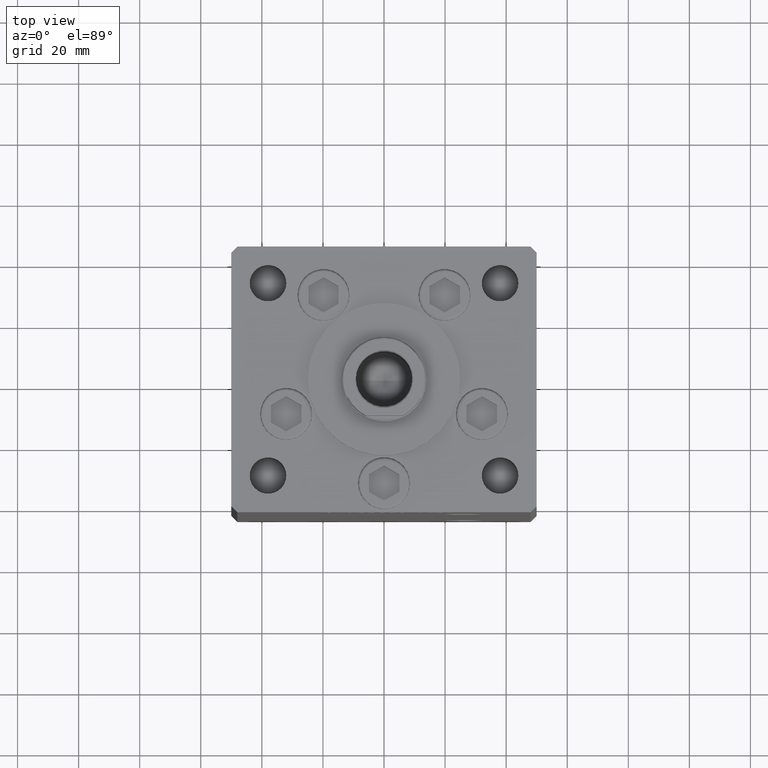
[diagram: clean part render]
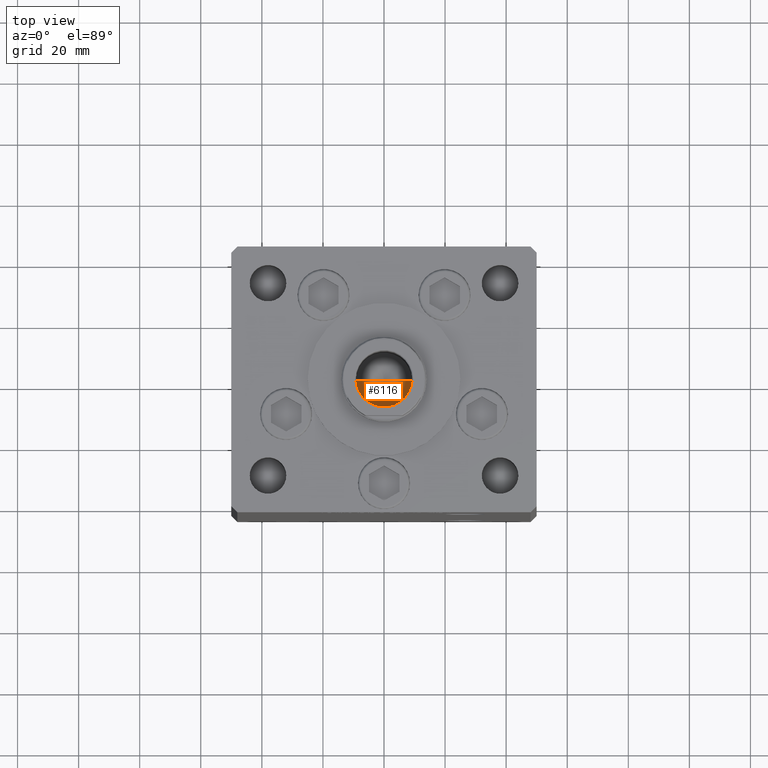
[diagram: same view with one face highlighted and labeled with its STEP entity id]
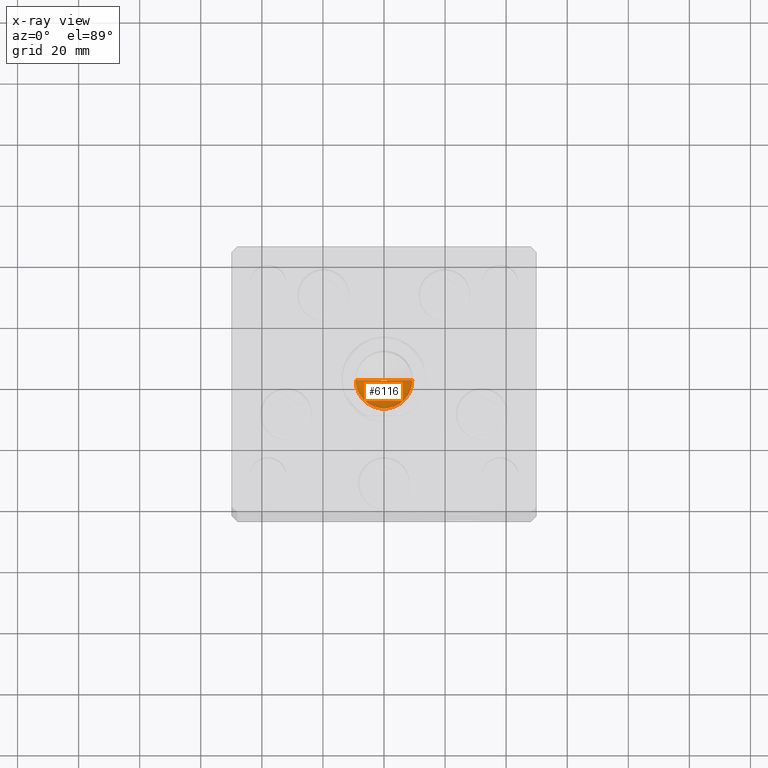
[diagram: x-ray of the same camera — body ghosted, the highlighted face saturated]
A machine part, top view. The second image highlights one B-rep face of the part: STEP entity #6116.
The next image is the same camera in x-ray: the body ghosted, the highlighted face saturated — about 9% of this face is hidden behind the body in this view.
In plain terms, the highlighted conical surface has half-angle 59 deg.
Its self-contained STEP definition (entity closure, byte-faithful):
#4821 = CARTESIAN_POINT ( 'NONE',  ( 0.000000000000000000, 0.000000000000000000, 130.2500000000000000 ) ) ;
#5138 = DIRECTION ( 'NONE',  ( -0.8571673007021117785, 1.049727191138617956E-16, 0.5150380749100550437 ) ) ;
#5648 = CARTESIAN_POINT ( 'NONE',  ( -9.249999999999994671, 1.132798289211300909E-15, 130.2500000000000000 ) ) ;
#5983 = CARTESIAN_POINT ( 'NONE',  ( 9.249999999999994671, 0.000000000000000000, 130.2500000000000000 ) ) ;
#6116 = ADVANCED_FACE ( 'NONE', ( #40968 ), #13400, .F. ) ;
#7085 = VERTEX_POINT ( 'NONE', #39419 ) ;
#13400 = CONICAL_SURFACE ( 'NONE', #46292, 9.249999999999994671, 1.029744258676653423 ) ;
#15365 = VERTEX_POINT ( 'NONE', #19600 ) ;
#15604 = ORIENTED_EDGE ( 'NONE', *, *, #43031, .T. ) ;
#16423 = EDGE_LOOP ( 'NONE', ( #30075, #15604, #16657 ) ) ;
#16657 = ORIENTED_EDGE ( 'NONE', *, *, #38763, .T. ) ;
#17722 = CARTESIAN_POINT ( 'NONE',  ( 0.000000000000000000, 0.000000000000000000, 130.2500000000000000 ) ) ;
#19031 = VECTOR ( 'NONE', #35847, 1000.000000000000000 ) ;
#19600 = CARTESIAN_POINT ( 'NONE',  ( -1.046994375366439223E-14, 0.000000000000000000, 124.6920392739950643 ) ) ;
#20913 = DIRECTION ( 'NONE',  ( -0.000000000000000000, -0.000000000000000000, 1.000000000000000000 ) ) ;
#24243 = CIRCLE ( 'NONE', #28463, 9.249999999999994671 ) ;
#28463 = AXIS2_PLACEMENT_3D ( 'NONE', #17722, #45955, #50156 ) ;
#30075 = ORIENTED_EDGE ( 'NONE', *, *, #32928, .F. ) ;
#30581 = CARTESIAN_POINT ( 'NONE',  ( 9.249999999999994671, 0.000000000000000000, 130.2500000000000000 ) ) ;
#31104 = LINE ( 'NONE', #30581, #19031 ) ;
#32928 = EDGE_CURVE ( 'NONE', #15365, #51383, #31104, .T. ) ;
#33894 = LINE ( 'NONE', #5648, #36050 ) ;
#35847 = DIRECTION ( 'NONE',  ( 0.8571673007021117785, 0.000000000000000000, 0.5150380749100550437 ) ) ;
#36050 = VECTOR ( 'NONE', #5138, 1000.000000000000000 ) ;
#37024 = DIRECTION ( 'NONE',  ( 1.000000000000000000, 0.000000000000000000, 0.000000000000000000 ) ) ;
#38763 = EDGE_CURVE ( 'NONE', #7085, #51383, #24243, .T. ) ;
#39419 = CARTESIAN_POINT ( 'NONE',  ( -9.249999999999994671, 1.132798289211300909E-15, 130.2500000000000000 ) ) ;
#40968 = FACE_OUTER_BOUND ( 'NONE', #16423, .T. ) ;
#43031 = EDGE_CURVE ( 'NONE', #15365, #7085, #33894, .T. ) ;
#45955 = DIRECTION ( 'NONE',  ( -0.000000000000000000, -0.000000000000000000, 1.000000000000000000 ) ) ;
#46292 = AXIS2_PLACEMENT_3D ( 'NONE', #4821, #20913, #37024 ) ;
#50156 = DIRECTION ( 'NONE',  ( 1.000000000000000000, 0.000000000000000000, 0.000000000000000000 ) ) ;
#51383 = VERTEX_POINT ( 'NONE', #5983 ) ;